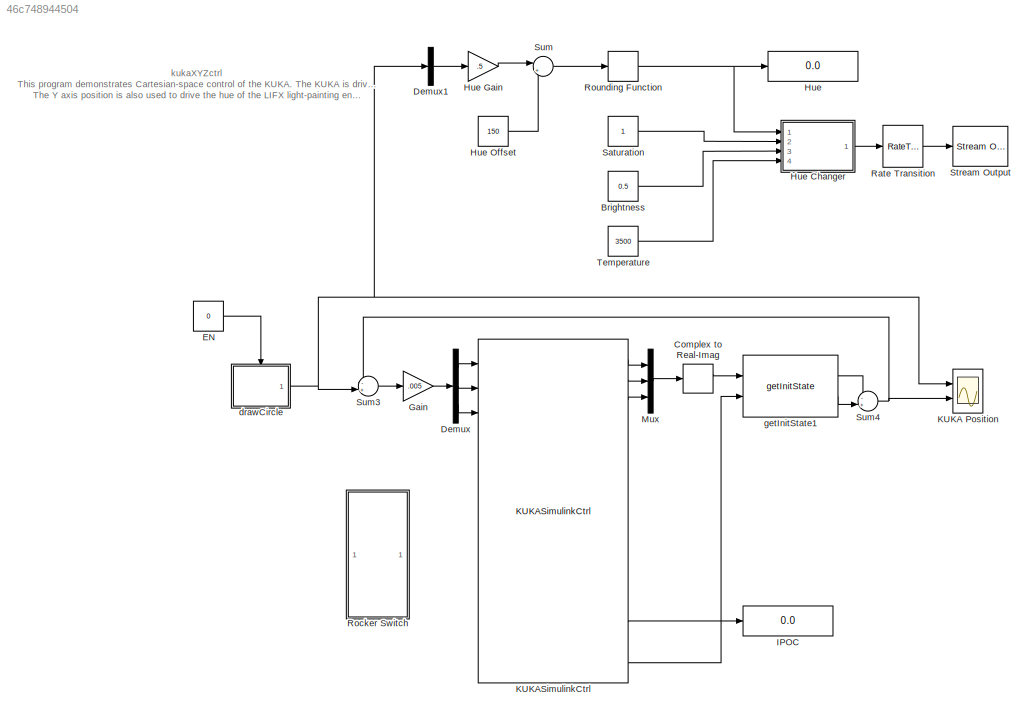
MODEL slx_46c748944504
KIND model
CONFIG AbsTol = auto
CONFIG EnableMultiTasking = on
CONFIG FixedStep = 0.001
CONFIG MaxStep = auto
CONFIG MinStep = auto
CONFIG RelTol = 1e-3
CONFIG SampleTimeConstraint = Unconstrained
CONFIG Solver = ode5
CONFIG SolverName = ode5
CONFIG StartTime = 0.0
CONFIG StopTime = inf
BLOCK [Constant] Brightness
  OutDataTypeStr = double
  OutMax = [1]
  Value = 0.5
BLOCK [ComplexToRealImag] Complex to Real-Imag
  Ports = [1, 2]
BLOCK [Demux] Demux
  DisplayOption = bar
  Outputs = 3
  Ports = [1, 3]
BLOCK [Demux] Demux1
  DisplayOption = bar
  Outputs = 3
  Ports = [1, 3]
BLOCK [Constant] EN
  Value = 0
BLOCK [Gain] Gain
  Gain = .005
  OutDataTypeStr = Inherit: Inherit via internal rule
  ParamDataTypeStr = Inherit: Inherit via internal rule
  SaturateOnIntegerOverflow = off
BLOCK [Display] Hue
  Decimation = 1
  Ports = [1]
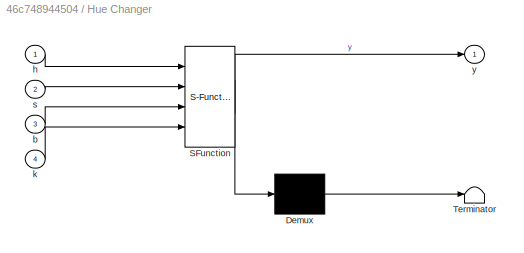
BLOCK [SubSystem] Hue Changer
  ErrorFcn = Stateflow.Translate.translate
  PermitHierarchicalResolution = ExplicitOnly
  Ports = [4, 1]
  RequestExecContextInheritance = off
  SFBlockType = MATLAB Function
  TreatAsAtomicUnit = on
  Variant = off
BLOCK [Demux] Hue Changer/ Demux 
  Outputs = 1
  Ports = [1, 1]
BLOCK [S-Function] Hue Changer/ SFunction 
  EnableBusSupport = on
  FunctionName = sf_sfun
  PortCounts = [4 2]
  Ports = [4, 2]
  SFcnIsStateOwnerBlock = off
  SFunctionDeploymentMode = off
  Tag = Stateflow S-Function kukaXYZctrl 2
BLOCK [Terminator] Hue Changer/ Terminator 
BLOCK [Inport] Hue Changer/b
  IconDisplay = Port number
  Port = 3
BLOCK [Inport] Hue Changer/h
  IconDisplay = Port number
BLOCK [Inport] Hue Changer/k
  IconDisplay = Port number
  Port = 4
BLOCK [Inport] Hue Changer/s
  IconDisplay = Port number
  Port = 2
BLOCK [Outport] Hue Changer/y
  IconDisplay = Port number
BLOCK [Gain] Hue Gain
  Gain = .5
  OutDataTypeStr = Inherit: Inherit via internal rule
  ParamDataTypeStr = Inherit: Inherit via internal rule
  SaturateOnIntegerOverflow = off
BLOCK [Constant] Hue Offset
  Value = 150
BLOCK [Display] IPOC
  Decimation = 1
  Ports = [1]
BLOCK [Scope] KUKA Position
  NumInputPorts = 2
  Ports = [2]
  ScopeSpecificationString = Simulink.scopes.TimeScopeBlockCfg('CurrentConfiguration', extmgr.ConfigurationSet(extmgr.Configuration('Core','General UI',true,'FigureColor',[1 1 1]),extmgr.Configuration('Core','Source UI',true),extmgr.Configuration('Sources','WiredSimulink',true),extmgr.Configuration('Visuals','Time Domain',true,'SerializedDisplays',{struct('MinYLimReal','-247.88331','MaxYLimReal','249.76481','YLabelReal','Refe...<+2903ch>
BLOCK [Reference] KUKASimulinkCtrl  REF=kukaslxctrl/KUKASimulinkCtrl  (lib defined in slx_03d93a5889d5, slx_da8e6fcdb2ed)
  Ports = [13, 16]
  SourceBlock = kukaslxctrl/KUKASimulinkCtrl
  SourceType = KUKASimulinkCtrl
BLOCK [Mux] Mux
  DisplayOption = bar
  Inputs = 3
  Ports = [3, 1]
BLOCK [RateTransition] Rate Transition
BLOCK [SubSystem] Rocker Switch
  DialogController = hmiCreateDDGDialog
  IsWebBlock = on
  MaskHideContents = on
  Ports = []
  RequestExecContextInheritance = off
  Variant = off
BLOCK [Rounding] Rounding Function
  Operator = round
BLOCK [Constant] Saturation
  OutDataTypeStr = double
BLOCK [Reference] Stream Output  REF=sldrtlib/Stream Output
  AttributesFormatString = Standard Devices\nUDP Protocol [D457h]
  Ports = [1]
  SourceBlock = sldrtlib/Stream Output
  SourceType = Simulink Desktop Real-Time Stream Output
BLOCK [Sum] Sum
  IconShape = round
  InputSameDT = off
  Inputs = |++
  OutDataTypeStr = Inherit: Inherit via internal rule
  Ports = [2, 1]
  SaturateOnIntegerOverflow = off
BLOCK [Sum] Sum3
  IconShape = round
  InputSameDT = off
  Inputs = -+|
  OutDataTypeStr = Inherit: Inherit via internal rule
  Ports = [2, 1]
  SaturateOnIntegerOverflow = off
BLOCK [Sum] Sum4
  IconShape = round
  InputSameDT = off
  Inputs = -+|
  OutDataTypeStr = Inherit: Inherit via internal rule
  Ports = [2, 1]
  SaturateOnIntegerOverflow = off
BLOCK [Constant] Temperature
  OutDataTypeStr = double
  OutMax = [9000]
  OutMin = [2500]
  Value = 3500
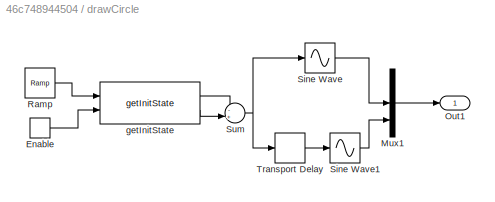
BLOCK [SubSystem] drawCircle
  Ports = [0, 1, 1]
  RequestExecContextInheritance = off
  Variant = off
BLOCK [EnablePort] drawCircle/Enable
  Ports = [0, 1]
  ShowOutputPort = on
BLOCK [Mux] drawCircle/Mux1
  DisplayOption = bar
  Inputs = 3
  Ports = [3, 1]
BLOCK [Outport] drawCircle/Out1
  IconDisplay = Port number
BLOCK [Reference] drawCircle/Ramp  REF=simulink/Sources/Ramp
  Ports = [0, 1]
  SourceBlock = simulink/Sources/Ramp
  SourceType = Ramp
BLOCK [Sin] drawCircle/Sine Wave
  Amplitude = 200
  Frequency = 0.5
  Ports = [1, 1]
  SampleTime = 0
  TimeSource = Use external signal
BLOCK [Sin] drawCircle/Sine Wave1
  Amplitude = 200
  Frequency = 0.5
  Ports = [1, 1]
  SampleTime = 0
  TimeSource = Use external signal
BLOCK [Sum] drawCircle/Sum
  IconShape = round
  InputSameDT = off
  Inputs = -+|
  OutDataTypeStr = Inherit: Inherit via internal rule
  Ports = [2, 1]
  SaturateOnIntegerOverflow = off
BLOCK [TransportDelay] drawCircle/Transport Delay
  DelayTime = 3
  Ports = [1, 1]
BLOCK [Reference] drawCircle/getInitState  REF=dcpctrl/getInitState
  Ports = [2, 2]
  SourceBlock = dcpctrl/getInitState
  SourceType = SubSystem
BLOCK [Reference] getInitState1  REF=dcpctrl/getInitState
  Ports = [2, 2]
  SourceBlock = dcpctrl/getInitState
  SourceType = SubSystem
ANNOTATION (root): kukaXYZctrl This program demonstrates Cartesian-space control of the KUKA. The KUKA is driven by sinusoidal position reference signals in the Y and Z axes. The Y axis position is also used to drive the hue of the LIFX light-painting end-effector.
LINE Brightness:1 -> Hue Changer:3
LINE Complex to Real-Imag:1 -> getInitState1:1
LINE Demux1:2 -> Hue Gain:1
LINE Demux:1 -> KUKASimulinkCtrl:1
LINE Demux:2 -> KUKASimulinkCtrl:2
LINE Demux:3 -> KUKASimulinkCtrl:3
LINE EN:1 -> drawCircle:enable
LINE Gain:1 -> Demux:1
LINE Hue Changer:1 -> Rate Transition:1
LINE Hue Gain:1 -> Sum:1
LINE Hue Offset:1 -> Sum:2
LINE KUKASimulinkCtrl:1 -> Mux:1
LINE KUKASimulinkCtrl:14 -> IPOC:1
LINE KUKASimulinkCtrl:16 -> getInitState1:2
LINE KUKASimulinkCtrl:2 -> Mux:2
LINE KUKASimulinkCtrl:3 -> Mux:3
LINE Mux:1 -> Complex to Real-Imag:1
LINE Rate Transition:1 -> Stream Output:1
NET Rounding Function:1 -> Hue Changer:1, Hue:1
LINE Saturation:1 -> Hue Changer:2
LINE Sum3:1 -> Gain:1
NET Sum4:1 -> KUKA Position:2, Sum3:1
LINE Sum:1 -> Rounding Function:1
LINE Temperature:1 -> Hue Changer:4
LINE drawCircle/Enable:1 -> drawCircle/getInitState:2
LINE drawCircle/Mux1:1 -> drawCircle/Out1:1
LINE drawCircle/Ramp:1 -> drawCircle/getInitState:1
LINE drawCircle/Sine Wave1:1 -> drawCircle/Mux1:3
LINE drawCircle/Sine Wave:1 -> drawCircle/Mux1:2
NET drawCircle/Sum:1 -> drawCircle/Sine Wave:1, drawCircle/Transport Delay:1
LINE drawCircle/Transport Delay:1 -> drawCircle/Sine Wave1:1
LINE drawCircle/getInitState:1 -> drawCircle/Sum:1
LINE drawCircle/getInitState:2 -> drawCircle/Sum:2
NET drawCircle:1 -> Demux1:1, KUKA Position:1, Sum3:2
LINE getInitState1:1 -> Sum4:1
LINE getInitState1:2 -> Sum4:2
note: NET lines group one-source signal fan-out (src -> all destinations, sorted); 1:1 wires keep LINE
CHART Hue Changer states=1 transitions=1
  STATE_LABEL 'eML_blk_kernel()'
  STATE_LABEL "SCRIPT:\nfunction y = fcn(h,s,b,k)\n%#codegen\n%%\ndec_code = [49;0;0;52;0;0;0;0;0;0;0;0;0;0;0;0;0;0;0;0;0;0;0;0;0;0;0;0;0;0;0;0;102;0;0;0;0;85;85;255;255;255;255;191;218;0;4;0;0];\n%%\n%%HUE \nhue = h/360 * 65535; %hue conversion formula, from degrees scale to LIFX scale\nhue = floor(hue);\nhue_hex = dec2hex(hue);\n\nif (length(hue_hex) == 1)\n    hue_arr = ['0',hue_hex(1)];\n    hue_arr = ['00',hue_arr(1:2)]...<+2435ch>"
